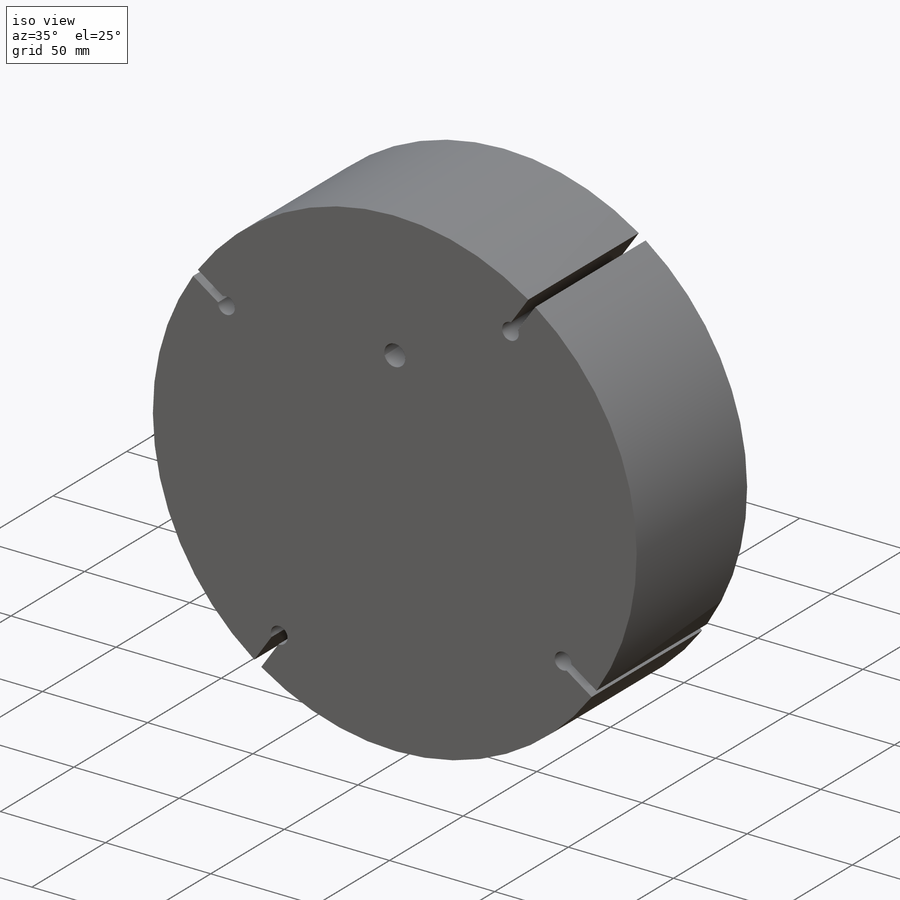
[diagram: iso view]
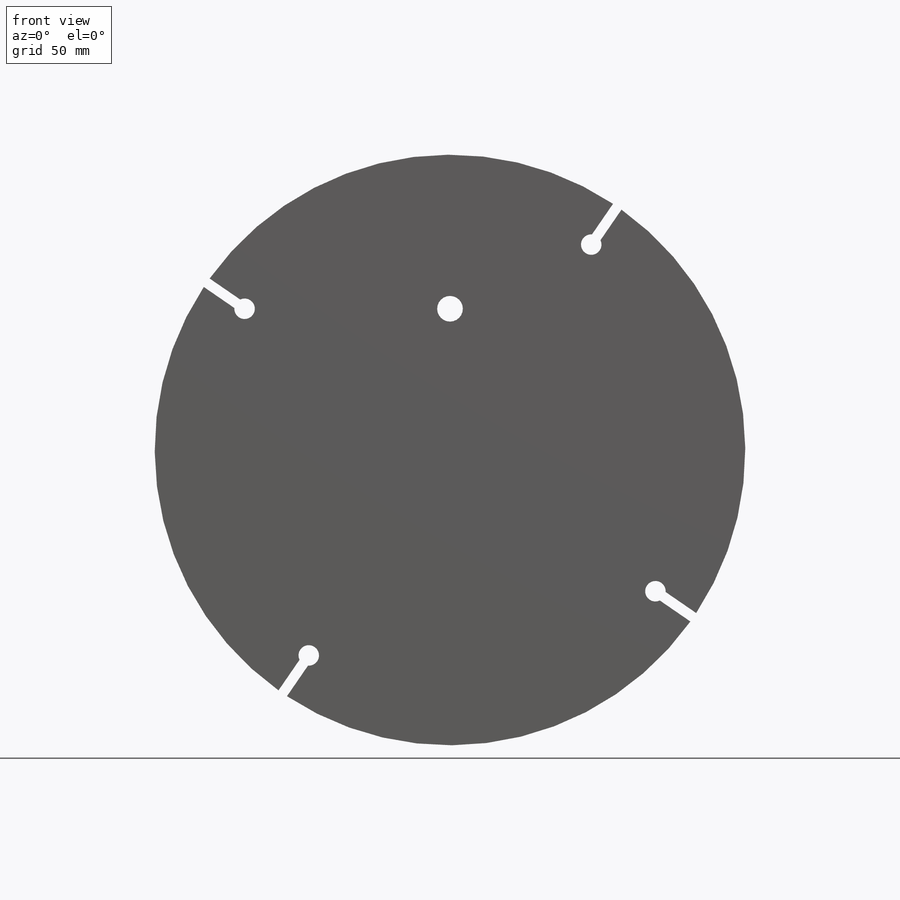
[diagram: front view]
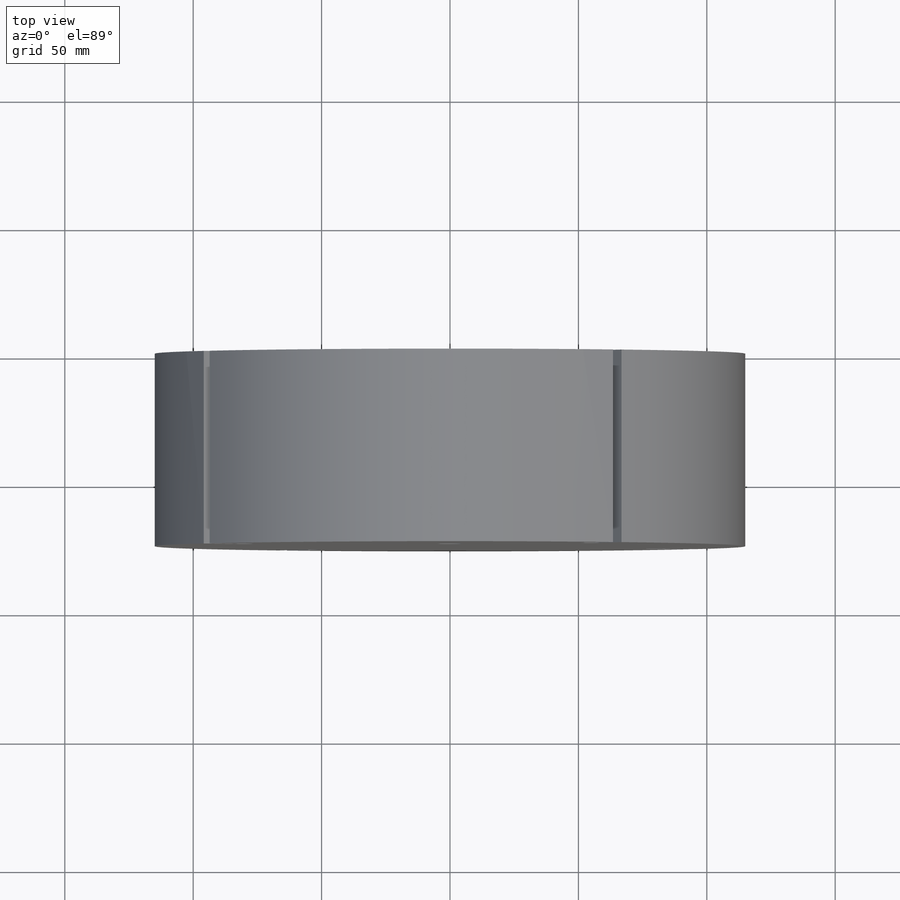
[diagram: top view]
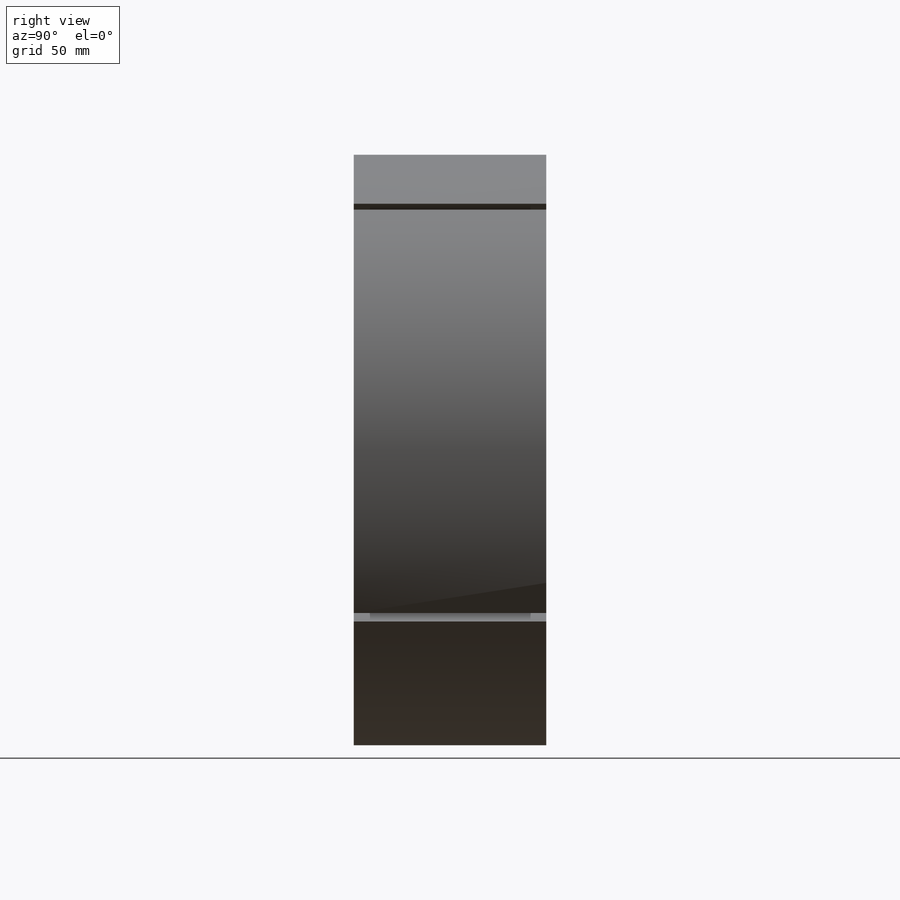
[diagram: right view]
SOLIDWORKS PART (.sldprt)
format: sldprt  version: not decoded by parser v0  size: 223,232 bytes
history: native  units: mm
features: sketch x6, cut_extrude x5, plane x3, material x1, extrude x1 (+9 scaffold rows collapsed)
feature tree (25):
  scaffold x9  (default folders/planes/origin — collapsed)
  material  "Materiale <non specificato>"
  plane  "Piano frontale"
  plane  "Piano superiore"
  plane  "Piano destro"
  sketch  "Schizzo1"  dims[D1=230.0mm]
  extrude  "Estrusione-Estrusione1"  Depth=75mm
  sketch  "Schizzo2"  dims[c1.D1=80.0mm c1.D2=55.0mm c2.D1=55.0mm c2.D2=80.0mm]
  cut_extrude  "Taglio-Estrusione1"  [1 undecoded]
  sketch  "Schizzo3"  dims[D1=35.0mm D2=60.0mm D3=60.0mm]
  cut_extrude  "Taglio-Estrusione2"  Depth=15mm
  sketch  "Schizzo4"  dims[D1=40.0mm D2=50.0mm D3=70.0mm]
  cut_extrude  "Taglio-Estrusione3"  Depth=25mm
  sketch  "Schizzo5"  dims[c1.D2=10.0mm c1.D1=55.0mm c2.D1=27.5mm c2.D2=45.0mm c2.D3=45.0mm]
  cut_extrude  "Taglio-Estrusione4"  [1 undecoded]
  sketch  "Schizzo6"  dims[D1=84.5mm D2=45.0mm D3=45.0mm]
  cut_extrude  "Taglio-Estrusione5"  Depth=12mm
decode coverage: 10 of 12 modeling features carry decoded parameters
note: 2 parameter values undecoded
note: suppression state not decoded; provenance and decode notes live in map.json
